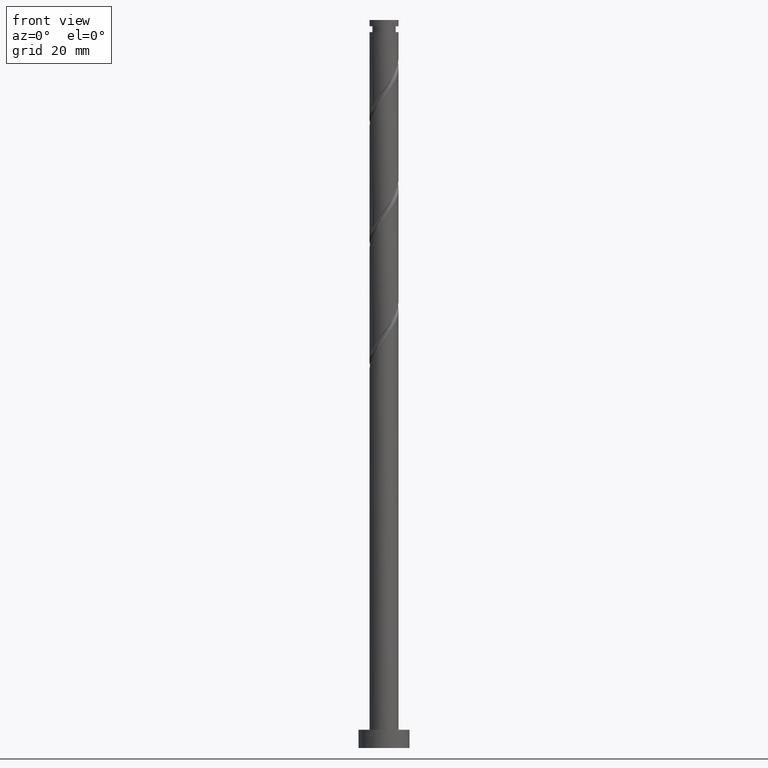
[diagram: clean part render]
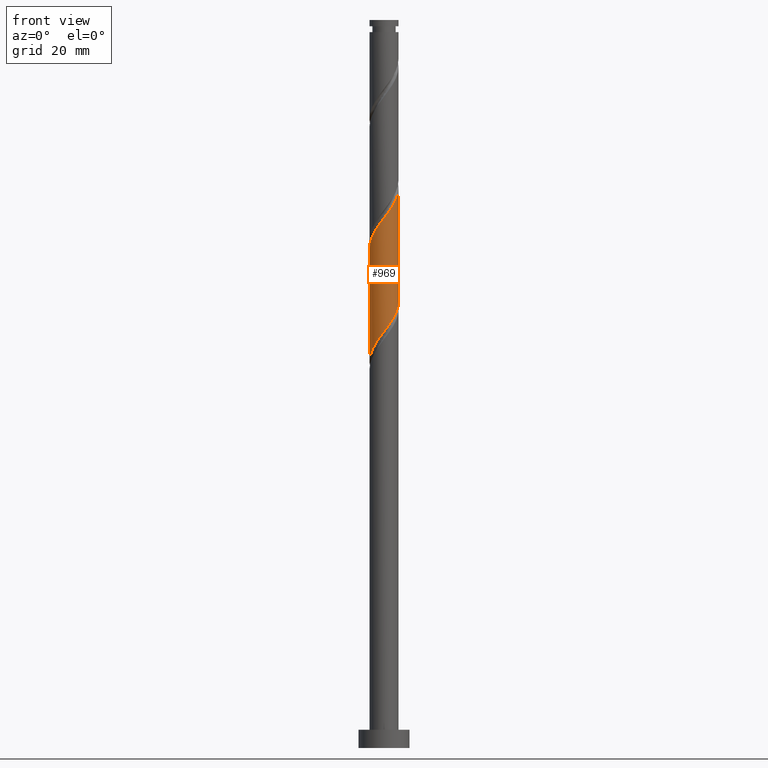
[diagram: same view with one face highlighted and labeled with its STEP entity id]
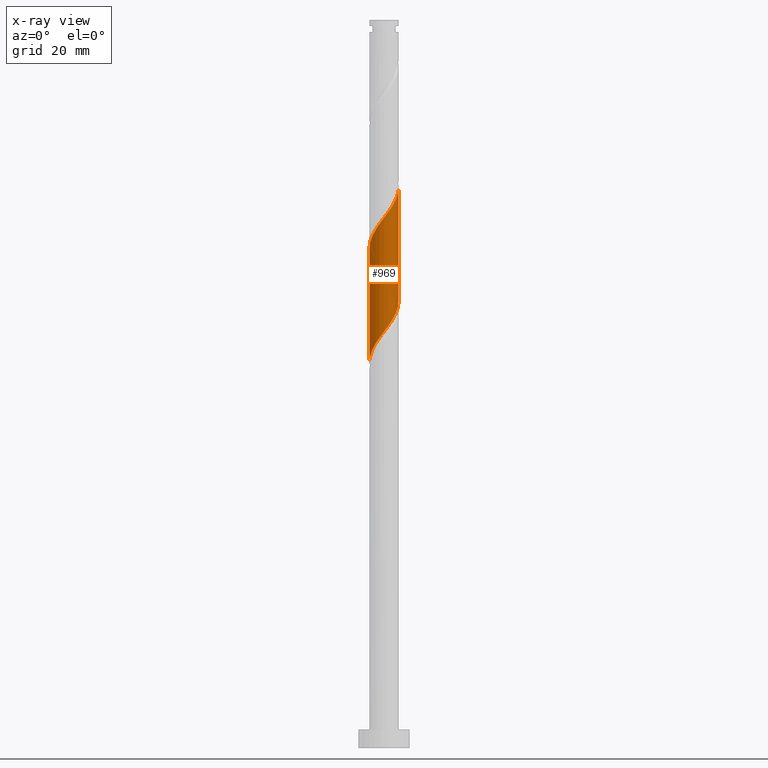
[diagram: x-ray of the same camera — body ghosted, the highlighted face saturated]
A machine part, front view. The second image highlights one B-rep face of the part: STEP entity #969.
The next image is the same camera in x-ray: the body ghosted, the highlighted face saturated — about 0% of this face is hidden behind the body in this view.
In plain terms, the highlighted cylindrical surface (edge-blend (fillet) strip) has radius 4 mm, axis along (-0, -0, -1).
Its self-contained STEP definition (entity closure, byte-faithful):
#22 = CARTESIAN_POINT ( 'NONE',  ( 4.000000000000000888, -0.4020151261036831181, 122.2143543580826588 ) ) ;
#32 = CARTESIAN_POINT ( 'NONE',  ( -2.996824607992357059, -2.649347517584567324, 141.1286585165062490 ) ) ;
#51 = CARTESIAN_POINT ( 'NONE',  ( 0.2799121591427036204, -4.024794064930541815, 145.9897696276173917 ) ) ;
#130 = EDGE_LOOP ( 'NONE', ( #1046, #1116, #855, #883 ) ) ;
#160 = CARTESIAN_POINT ( 'NONE',  ( -4.000000000000007994, -2.706634984295222451E-15, 137.2873140835184245 ) ) ;
#163 = CYLINDRICAL_SURFACE ( 'NONE', #824, 4.000000000000000000 ) ;
#171 =( BOUNDED_CURVE ( )  B_SPLINE_CURVE ( 2, ( #160, #697, #446, #816, #976, #1357, #32, #1518, #316, #842, #541, #1069, #1382, #51, #348, #1139, #874, #859, #1013, #738, #748, #1527, #1283, #188, #1536, #579, #196 ),
 .UNSPECIFIED., .F., .T. ) 
 B_SPLINE_CURVE_WITH_KNOTS ( ( 3, 2, 2, 2, 2, 2, 2, 2, 2, 2, 2, 2, 2, 3 ),
 ( 0.3045317669814465722, 0.3125000000000000000, 0.3229166666666666297, 0.3333333333333333703, 0.3437500000000000000, 0.3541666666666666297, 0.3645833333333333703, 0.3750000000000000000, 0.3854166666666666297, 0.3958333333333333703, 0.4062500000000000000, 0.4166666666666666297, 0.4270833333333333703, 0.4295317669814463502 ),
 .UNSPECIFIED. ) 
 CURVE ( )  GEOMETRIC_REPRESENTATION_ITEM ( )  RATIONAL_B_SPLINE_CURVE ( ( 0.9062941362546487190, 0.9031415850403534673, 0.9090909090909286006, 0.9013135103398470793, 0.9090909090909286006, 0.9013135103398470793, 0.9090909090909286006, 0.9013135103398470793, 0.9090909090909286006, 0.9013135103398470793, 0.9090909090909286006, 0.9013135103398470793, 0.9090909090909286006, 0.9013135103398470793, 0.9090909090909286006, 0.9013135103398470793, 0.9090909090909286006, 0.9013135103398470793, 0.9090909090909286006, 0.9013135103398470793, 0.9090909090909286006, 0.9013135103398470793, 0.9090909090909286006, 0.9013135103398470793, 0.9090909090909286006, 0.9072628343904223236, 0.9062941362546488300 ) ) 
 REPRESENTATION_ITEM ( '' )  );
#181 = CARTESIAN_POINT ( 'NONE',  ( -1.783437906669446349, -3.580411880364394950, 111.9619918498395776 ) ) ;
#188 = CARTESIAN_POINT ( 'NONE',  ( 3.960099130553271340, -0.7713189730113434450, 152.9342140720618204 ) ) ;
#196 = CARTESIAN_POINT ( 'NONE',  ( 4.000000000000007994, 1.046764911053401024E-16, 153.9539807501851669 ) ) ;
#285 = DIRECTION ( 'NONE',  ( -1.000000000000000000, 0.000000000000000000, 0.000000000000000000 ) ) ;
#301 = CARTESIAN_POINT ( 'NONE',  ( -4.000000000000000000, -0.1229678066306849060, 106.2442777486333512 ) ) ;
#310 = CARTESIAN_POINT ( 'NONE',  ( 3.919999999999999929, -0.7959899496852976819, 121.6842140720618204 ) ) ;
#316 = CARTESIAN_POINT ( 'NONE',  ( -2.209008691072459118, -3.334708473430083586, 142.5175474053951348 ) ) ;
#348 = CARTESIAN_POINT ( 'NONE',  ( 0.7959899496852973488, -3.920000000000007034, 146.6842140720618204 ) ) ;
#432 = CARTESIAN_POINT ( 'NONE',  ( 1.270652482415433937, -3.792814557677647969, 116.1286585165062348 ) ) ;
#446 = CARTESIAN_POINT ( 'NONE',  ( -3.920000000000007034, -0.7959899496852975709, 138.3508807387285060 ) ) ;
#462 = VECTOR ( 'NONE', #1486, 1000.000000000000000 ) ;
#541 = CARTESIAN_POINT ( 'NONE',  ( -1.270652482415439932, -3.792814557677653742, 143.9064362942840773 ) ) ;
#544 = CARTESIAN_POINT ( 'NONE',  ( 0.2457034069343151383, -3.992446597741900582, 114.7397696276173491 ) ) ;
#574 = CARTESIAN_POINT ( 'NONE',  ( -3.792814557677647525, -1.270652482415434603, 107.7953251831729204 ) ) ;
#579 = CARTESIAN_POINT ( 'NONE',  ( 4.000000000000007994, -0.1229678066306953976, 153.7908170621569752 ) ) ;
#638 = VERTEX_POINT ( 'NONE', #1332 ) ;
#672 = VERTEX_POINT ( 'NONE', #1592 ) ;
#680 = CARTESIAN_POINT ( 'NONE',  ( 4.000000000000000000, 5.443177537477727576E-15, 122.7477807272718877 ) ) ;
#693 = CARTESIAN_POINT ( 'NONE',  ( 3.345617825659324751, -2.254808073111004951, 119.6008807387285202 ) ) ;
#697 = CARTESIAN_POINT ( 'NONE',  ( -4.000000000000004441, -0.4020151261036979951, 137.8207404527076960 ) ) ;
#704 = CARTESIAN_POINT ( 'NONE',  ( 4.000000000000000000, 5.443177537477727576E-15, 122.7477807272718877 ) ) ;
#707 = CARTESIAN_POINT ( 'NONE',  ( 1.769985991819530868, -3.625529984802032590, 116.8231029609507203 ) ) ;
#738 = CARTESIAN_POINT ( 'NONE',  ( 3.043886962058129697, -2.648031390325381373, 150.1564362942839921 ) ) ;
#748 = CARTESIAN_POINT ( 'NONE',  ( 3.334708473430082698, -2.209008691072460895, 150.8508807387285060 ) ) ;
#816 = CARTESIAN_POINT ( 'NONE',  ( -3.815205935069472254, -1.312067740227889745, 139.0453251831729062 ) ) ;
#819 = CARTESIAN_POINT ( 'NONE',  ( 2.996824607992349954, -2.649347517584564660, 118.9064362942840489 ) ) ;
#824 = AXIS2_PLACEMENT_3D ( 'NONE', #1521, #1228, #285 ) ;
#835 = CARTESIAN_POINT ( 'NONE',  ( 2.648031390325374268, -3.043886962058126588, 118.2119918498396345 ) ) ;
#842 = CARTESIAN_POINT ( 'NONE',  ( -1.769985991819536864, -3.625529984802036587, 143.2119918498395350 ) ) ;
#855 = ORIENTED_EDGE ( 'NONE', *, *, #1635, .T. ) ;
#859 = CARTESIAN_POINT ( 'NONE',  ( 2.254808073111004063, -3.345617825659333633, 148.7675474053951348 ) ) ;
#874 = CARTESIAN_POINT ( 'NONE',  ( 1.783437906669446793, -3.580411880364403387, 148.0731029609507061 ) ) ;
#883 = ORIENTED_EDGE ( 'NONE', *, *, #890, .F. ) ;
#890 = EDGE_CURVE ( 'NONE', #1492, #638, #1628, .T. ) ;
#942 = CARTESIAN_POINT ( 'NONE',  ( -3.334708473430078257, -2.209008691072453345, 109.1842140720617920 ) ) ;
#947 = EDGE_CURVE ( 'NONE', #1723, #1492, #1359, .T. ) ;
#951 = CARTESIAN_POINT ( 'NONE',  ( -2.254808073111003619, -3.345617825659326083, 111.2675474053951632 ) ) ;
#959 = CARTESIAN_POINT ( 'NONE',  ( 0.7713189730113366727, -3.960099130553265123, 115.4342140720618346 ) ) ;
#969 = ADVANCED_FACE ( 'NONE', ( #1630 ), #163, .T. ) ;
#971 = CARTESIAN_POINT ( 'NONE',  ( 3.815205935069463816, -1.312067740227892187, 120.9897696276174202 ) ) ;
#976 = CARTESIAN_POINT ( 'NONE',  ( -3.580411880364402499, -1.783437906669447903, 139.7397696276173917 ) ) ;
#1013 = CARTESIAN_POINT ( 'NONE',  ( 2.649347517584566880, -2.996824607992357503, 149.4619918498396203 ) ) ;
#1046 = ORIENTED_EDGE ( 'NONE', *, *, #947, .F. ) ;
#1069 = CARTESIAN_POINT ( 'NONE',  ( -0.7713189730113416687, -3.960099130553272673, 144.6008807387285060 ) ) ;
#1072 = CARTESIAN_POINT ( 'NONE',  ( -0.7959899496852974599, -3.919999999999999929, 113.3508807387284634 ) ) ;
#1107 = CARTESIAN_POINT ( 'NONE',  ( -3.960099130553265123, -0.7713189730113381160, 107.1008807387285060 ) ) ;
#1116 = ORIENTED_EDGE ( 'NONE', *, *, #1544, .F. ) ;
#1139 = CARTESIAN_POINT ( 'NONE',  ( 1.312067740227889745, -3.815205935069472254, 147.3786585165062775 ) ) ;
#1228 = DIRECTION ( 'NONE',  ( -0.000000000000000000, -0.000000000000000000, -1.000000000000000000 ) ) ;
#1243 = CARTESIAN_POINT ( 'NONE',  ( -3.625529984802032590, -1.769985991819530868, 108.4897696276173633 ) ) ;
#1257 = LINE ( 'NONE', #1691, #1274 ) ;
#1274 = VECTOR ( 'NONE', #1543, 1000.000000000000000 ) ;
#1283 = CARTESIAN_POINT ( 'NONE',  ( 3.792814557677653742, -1.270652482415440376, 152.2397696276173349 ) ) ;
#1332 = CARTESIAN_POINT ( 'NONE',  ( -4.000000000000000000, 4.740349668627582263E-15, 106.0811140606051879 ) ) ;
#1351 = CARTESIAN_POINT ( 'NONE',  ( -3.992446597741898806, -0.2457034069343163318, 106.4064362942840347 ) ) ;
#1357 = CARTESIAN_POINT ( 'NONE',  ( -3.345617825659332301, -2.254808073111004951, 140.4342140720618204 ) ) ;
#1359 = LINE ( 'NONE', #1385, #462 ) ;
#1377 = CARTESIAN_POINT ( 'NONE',  ( -1.312067740227891299, -3.815205935069465149, 112.6564362942840489 ) ) ;
#1382 = CARTESIAN_POINT ( 'NONE',  ( -0.2457034069343189131, -3.992446597741906356, 145.2953251831729347 ) ) ;
#1385 = CARTESIAN_POINT ( 'NONE',  ( 4.000000000000000000, 4.898587196589412829E-16, 200.0000000000000000 ) ) ;
#1486 = DIRECTION ( 'NONE',  ( -0.000000000000000000, -0.000000000000000000, -1.000000000000000000 ) ) ;
#1492 = VERTEX_POINT ( 'NONE', #704 ) ;
#1495 = CARTESIAN_POINT ( 'NONE',  ( -2.649347517584564660, -2.996824607992349954, 110.5731029609506919 ) ) ;
#1504 = CARTESIAN_POINT ( 'NONE',  ( -3.043886962058126588, -2.648031390325375600, 109.8786585165062917 ) ) ;
#1513 = CARTESIAN_POINT ( 'NONE',  ( 3.580411880364393618, -1.783437906669448347, 120.2953251831729204 ) ) ;
#1518 = CARTESIAN_POINT ( 'NONE',  ( -2.648031390325381373, -3.043886962058129697, 141.8231029609507061 ) ) ;
#1521 = CARTESIAN_POINT ( 'NONE',  ( 0.000000000000000000, 0.000000000000000000, 200.0000000000000000 ) ) ;
#1527 = CARTESIAN_POINT ( 'NONE',  ( 3.625529984802036143, -1.769985991819536864, 151.5453251831729347 ) ) ;
#1536 = CARTESIAN_POINT ( 'NONE',  ( 3.992446597741906356, -0.2457034069343211891, 153.6286585165062775 ) ) ;
#1543 = DIRECTION ( 'NONE',  ( -0.000000000000000000, -0.000000000000000000, -1.000000000000000000 ) ) ;
#1544 = EDGE_CURVE ( 'NONE', #672, #1723, #171, .T. ) ;
#1592 = CARTESIAN_POINT ( 'NONE',  ( -4.000000000000007994, -2.706634984295222451E-15, 137.2873140835184245 ) ) ;
#1621 = CARTESIAN_POINT ( 'NONE',  ( -0.2799121591427067290, -4.024794064930535598, 114.0453251831729489 ) ) ;
#1628 =( BOUNDED_CURVE ( )  B_SPLINE_CURVE ( 2, ( #680, #22, #310, #971, #1513, #693, #819, #835, #1638, #707, #432, #959, #544, #1621, #1072, #1377, #181, #951, #1495, #1504, #942, #1243, #574, #1107, #1351, #301, #1658 ),
 .UNSPECIFIED., .F., .T. ) 
 B_SPLINE_CURVE_WITH_KNOTS ( ( 3, 2, 2, 2, 2, 2, 2, 2, 2, 2, 2, 2, 2, 3 ),
 ( 0.8045317669814462391, 0.8125000000000000000, 0.8229166666666666297, 0.8333333333333333703, 0.8437500000000000000, 0.8541666666666666297, 0.8645833333333333703, 0.8750000000000000000, 0.8854166666666666297, 0.8958333333333333703, 0.9062500000000000000, 0.9166666666666666297, 0.9270833333333333703, 0.9295317669814464612 ),
 .UNSPECIFIED. ) 
 CURVE ( )  GEOMETRIC_REPRESENTATION_ITEM ( )  RATIONAL_B_SPLINE_CURVE ( ( 0.9062941362546417245, 0.9031415850403458068, 0.9090909090909213841, 0.9013135103398396408, 0.9090909090909213841, 0.9013135103398396408, 0.9090909090909213841, 0.9013135103398396408, 0.9090909090909213841, 0.9013135103398396408, 0.9090909090909213841, 0.9013135103398396408, 0.9090909090909213841, 0.9013135103398396408, 0.9090909090909213841, 0.9013135103398396408, 0.9090909090909213841, 0.9013135103398396408, 0.9090909090909213841, 0.9013135103398396408, 0.9090909090909213841, 0.9013135103398396408, 0.9090909090909213841, 0.9013135103398396408, 0.9090909090909213841, 0.9072628343904149961, 0.9062941362546415025 ) ) 
 REPRESENTATION_ITEM ( '' )  );
#1630 = FACE_OUTER_BOUND ( 'NONE', #130, .T. ) ;
#1635 = EDGE_CURVE ( 'NONE', #672, #638, #1257, .T. ) ;
#1638 = CARTESIAN_POINT ( 'NONE',  ( 2.209008691072452013, -3.334708473430079145, 117.5175474053951632 ) ) ;
#1658 = CARTESIAN_POINT ( 'NONE',  ( -4.000000000000000000, 4.740349668627582263E-15, 106.0811140606051879 ) ) ;
#1663 = CARTESIAN_POINT ( 'NONE',  ( 4.000000000000007994, 1.046764911053401024E-16, 153.9539807501851385 ) ) ;
#1691 = CARTESIAN_POINT ( 'NONE',  ( -4.000000000000000000, 0.000000000000000000, 200.0000000000000000 ) ) ;
#1723 = VERTEX_POINT ( 'NONE', #1663 ) ;